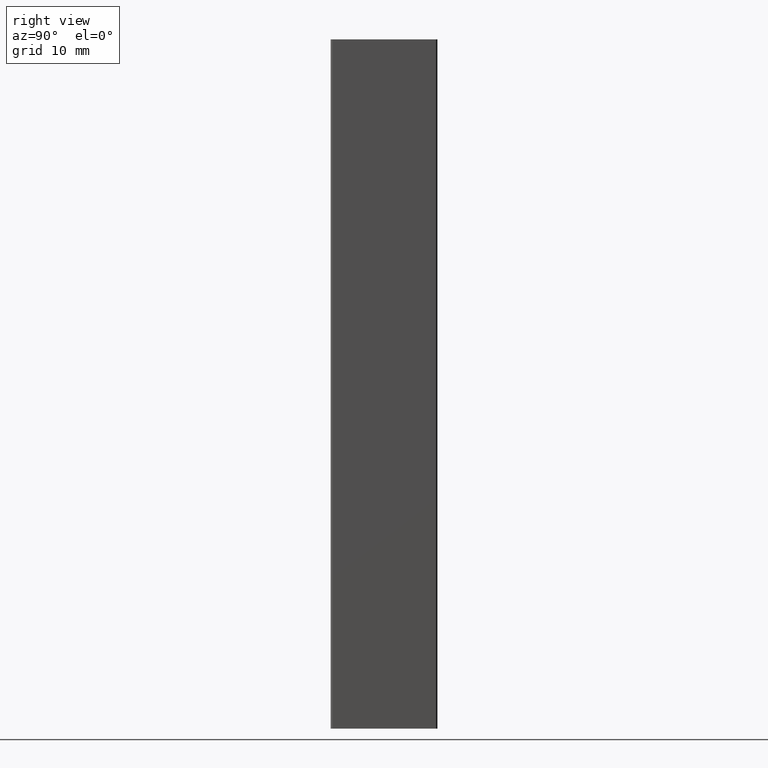
[diagram: clean part render]
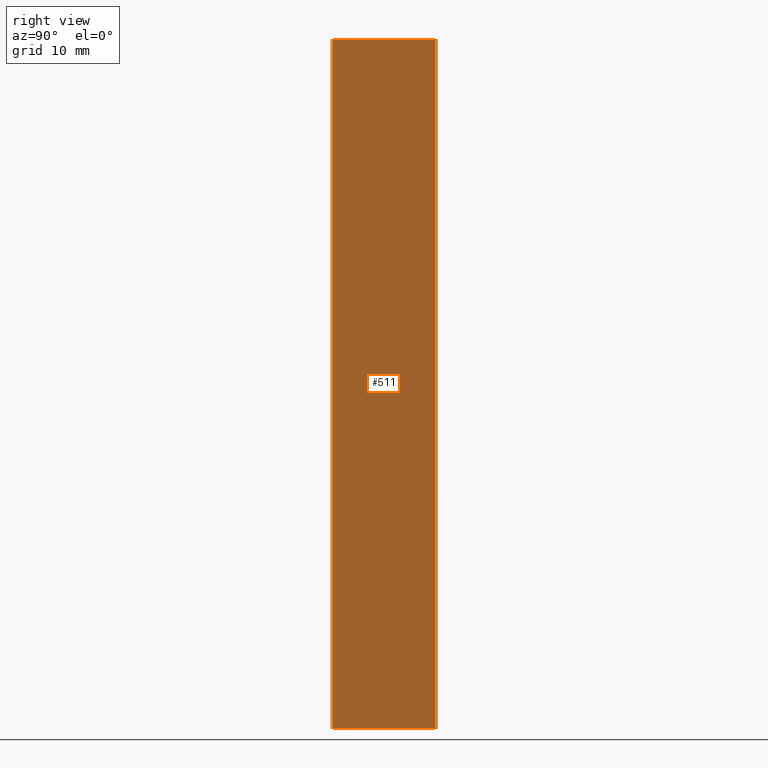
[diagram: same view with one face highlighted and labeled with its STEP entity id]
A machine part, right view. The second image highlights one B-rep face of the part: STEP entity #511.
In plain terms, the highlighted planar face has unit normal (1, 0, 0).
Its self-contained STEP definition (entity closure, byte-faithful):
#36=PLANE('',#620);
#58=FACE_OUTER_BOUND('',#86,.T.);
#86=EDGE_LOOP('',(#405,#406,#407,#408));
#110=LINE('',#834,#160);
#134=LINE('',#905,#184);
#135=LINE('',#908,#185);
#136=LINE('',#909,#186);
#160=VECTOR('',#671,10.);
#184=VECTOR('',#733,10.);
#185=VECTOR('',#736,10.);
#186=VECTOR('',#737,10.);
#233=VERTEX_POINT('',#831);
#234=VERTEX_POINT('',#833);
#261=VERTEX_POINT('',#901);
#263=VERTEX_POINT('',#907);
#283=EDGE_CURVE('',#234,#233,#110,.T.);
#319=EDGE_CURVE('',#234,#261,#134,.T.);
#320=EDGE_CURVE('',#263,#233,#135,.T.);
#321=EDGE_CURVE('',#263,#261,#136,.T.);
#405=ORIENTED_EDGE('',*,*,#319,.F.);
#406=ORIENTED_EDGE('',*,*,#283,.T.);
#407=ORIENTED_EDGE('',*,*,#320,.F.);
#408=ORIENTED_EDGE('',*,*,#321,.T.);
#511=ADVANCED_FACE('',(#58),#36,.T.);
#620=AXIS2_PLACEMENT_3D('',#906,#734,#735);
#671=DIRECTION('',(0.,1.,0.));
#733=DIRECTION('',(0.,0.,1.));
#734=DIRECTION('center_axis',(1.,0.,0.));
#735=DIRECTION('ref_axis',(0.,0.,-1.));
#736=DIRECTION('',(0.,0.,-1.));
#737=DIRECTION('',(0.,-1.,0.));
#831=CARTESIAN_POINT('',(16.,15.2,-50.));
#833=CARTESIAN_POINT('',(16.,0.3,-50.));
#834=CARTESIAN_POINT('',(16.,0.,-50.));
#901=CARTESIAN_POINT('',(16.,0.3,50.));
#905=CARTESIAN_POINT('',(16.,0.3,0.));
#906=CARTESIAN_POINT('Origin',(16.,15.5,0.));
#907=CARTESIAN_POINT('',(16.,15.2,50.));
#908=CARTESIAN_POINT('',(16.,15.2,0.));
#909=CARTESIAN_POINT('',(16.,0.,50.));